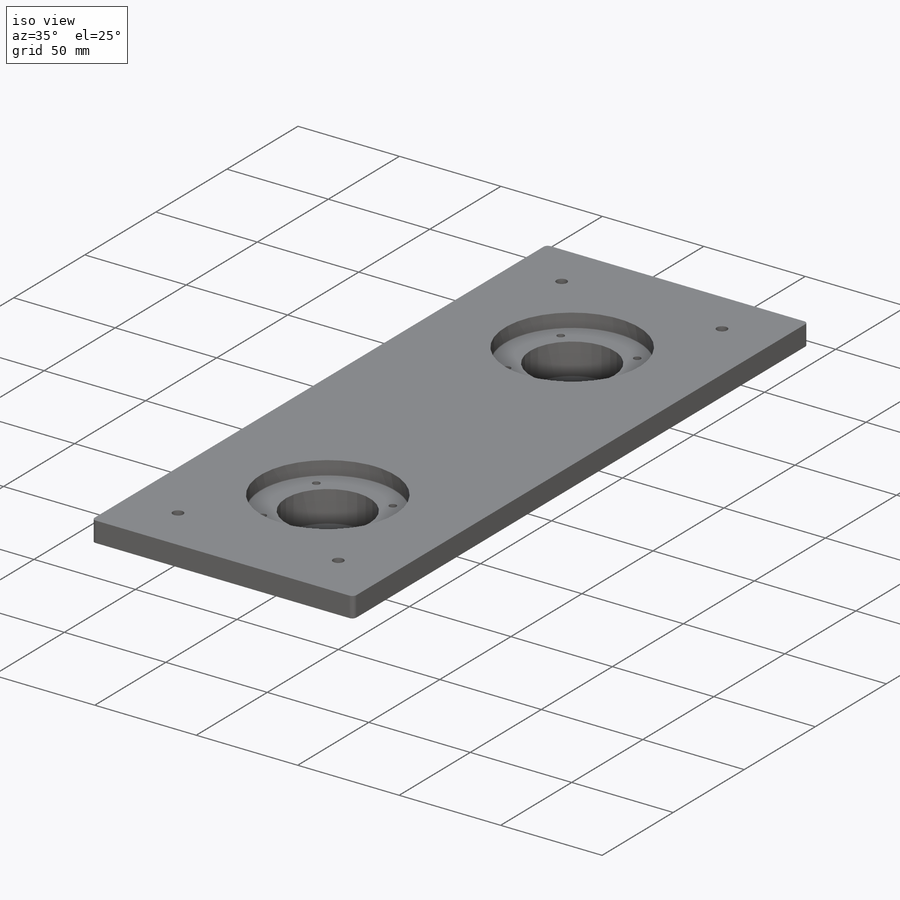
[diagram: iso view]
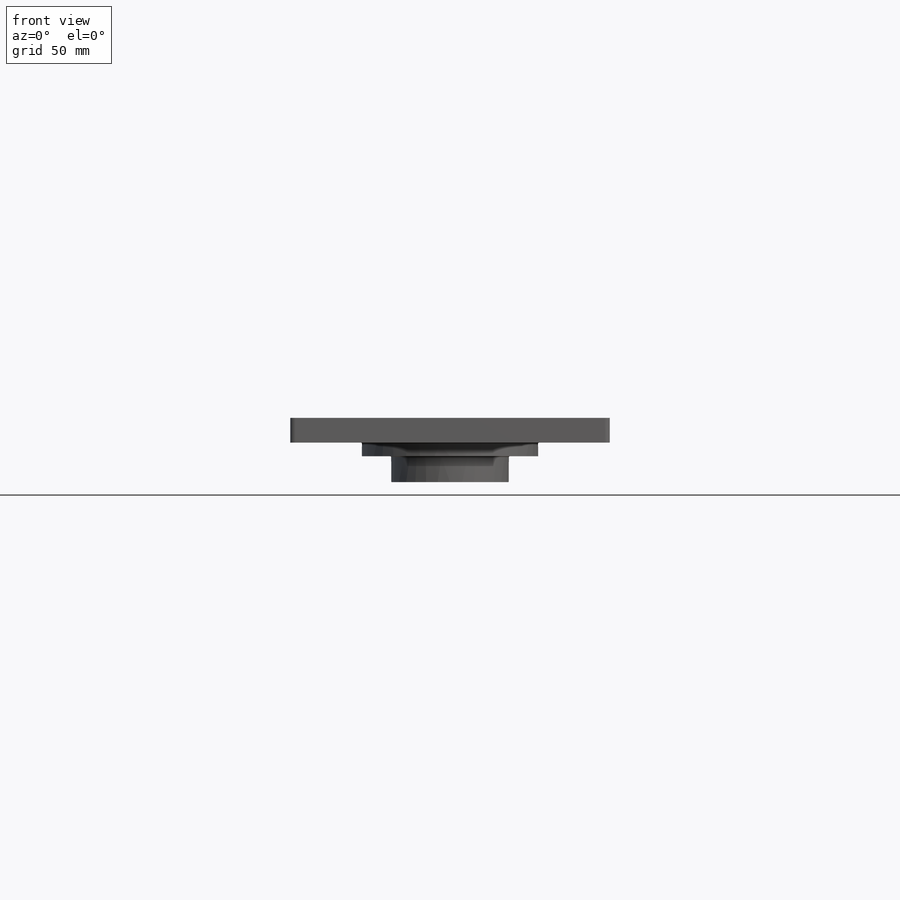
[diagram: front view]
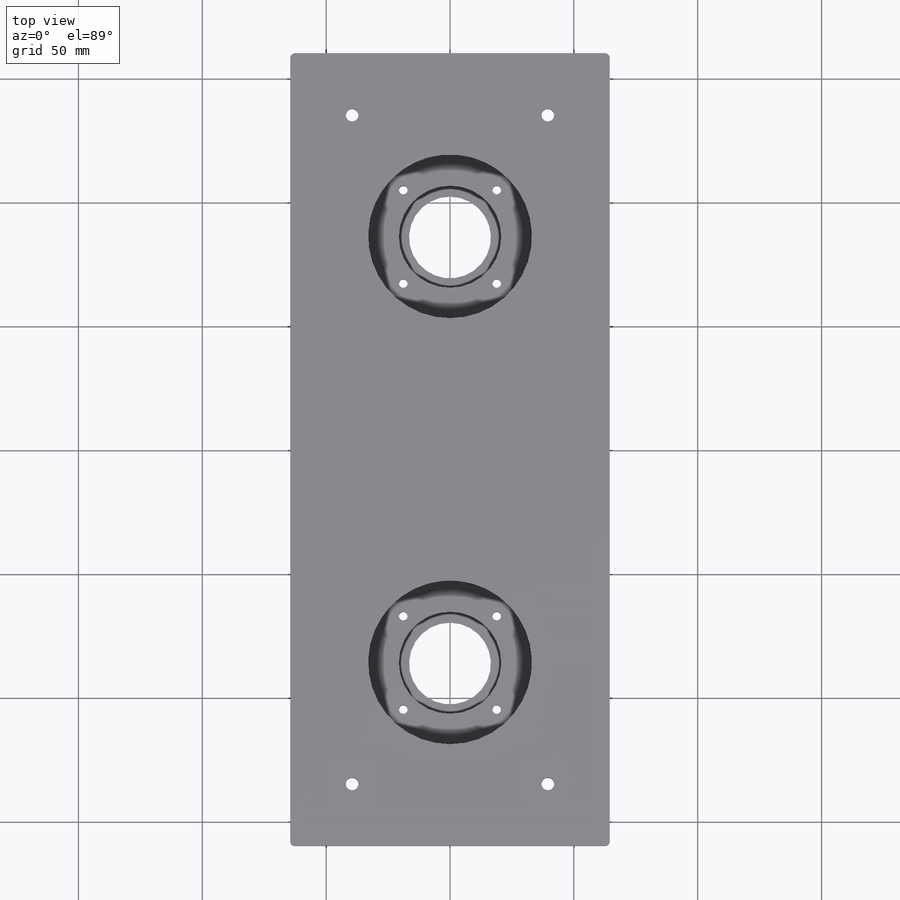
[diagram: top view]
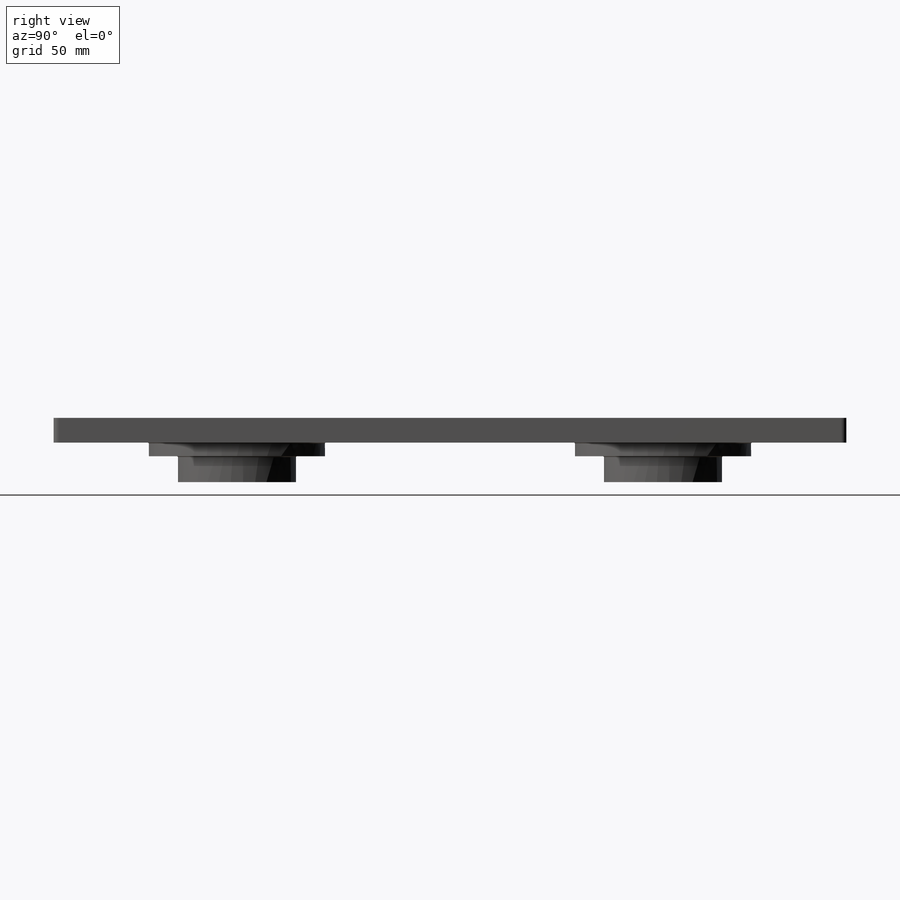
[diagram: right view]
SOLIDWORKS PART (.sldprt)
format: sldprt  version: not decoded by parser v0  size: 459,264 bytes
history: native  units: mm
features: sketch x12, thread x5, extrude x3, cut_extrude x3, mirror x3, hole x2, fillet x2, material x1 (+11 scaffold rows collapsed)
feature tree (42):
  scaffold x11  (default folders/planes/origin — collapsed)
  material  "6061-T6 (SS)"
  sketch  "Sketch1"  dims[D3=148.0mm D1=129.0mm D2=320.0mm]
  extrude  "Extrude1"  Depth=10mm
  sketch  "Sketch2"  dims[c1.D1=47.6377mm c2.D1=70.5mm]
  extrude  "Extrude2"  Depth=25.92mm
  sketch  "Sketch3"  dims[D1=33.02mm]
  cut_extrude  "Extrude3"  [1 undecoded]
  sketch  "Sketch4"  dims[D1=41.2877mm]
  cut_extrude  "Extrude4"  Depth=3.175mm
  sketch  "Sketch5"  dims[D1=66.04mm]
  cut_extrude  "Extrude5"  Depth=7.112mm
  sketch  "Sketch11"  dims[D1=2.54mm]
  extrude  "Boss-Extrude2"  Depth=8.382mm
  sketch  "hole positions"  dims[D1=53.34mm]
  hole  "#8-32 Tapped Hole1"  Diameter=3.4544mm Depth=18.808mm
  sketch  "3DSketch1"
  sketch  "Sketch7"  dims[hole-wizard template sketch: 60 standard entries collapsed; hole parameters kept: c18.Thru Tap Drill Depth=18.808mm]
  thread  "Hole Thread14"  Diameter=8.6mm  [1 undecoded]
  thread  "Hole Thread15"  Diameter=8.6mm  [1 undecoded]
  thread  "Hole Thread16"  Diameter=8.6mm  [1 undecoded]
  thread  "Hole Thread17"  Diameter=8.6mm  [1 undecoded]
  mirror  "Mirror1"
  fillet  "Fillet1"  Radius=0.39624mm
  fillet  "Fillet2"  Radius=2mm
  sketch  "Sketch8"  dims[D1=50.0mm]
  hole  "1/4-20 Tapped Hole1"  Diameter=5.1054mm Depth=25.92mm
  sketch  "Sketch10"
  sketch  "Sketch9"  dims[hole-wizard template sketch: 60 standard entries collapsed; hole parameters kept: c18.Thru Tap Drill Depth=25.92mm]
  thread  "Hole Thread5"  Diameter=6.35mm  [1 undecoded]
  mirror  "Mirror2"
  mirror  "Mirror3"
decode coverage: 24 of 30 modeling features carry decoded parameters
note: ~ marks probable driven/reference dimensions
note: 6 parameter values undecoded
note: suppression state not decoded; provenance and decode notes live in map.json
